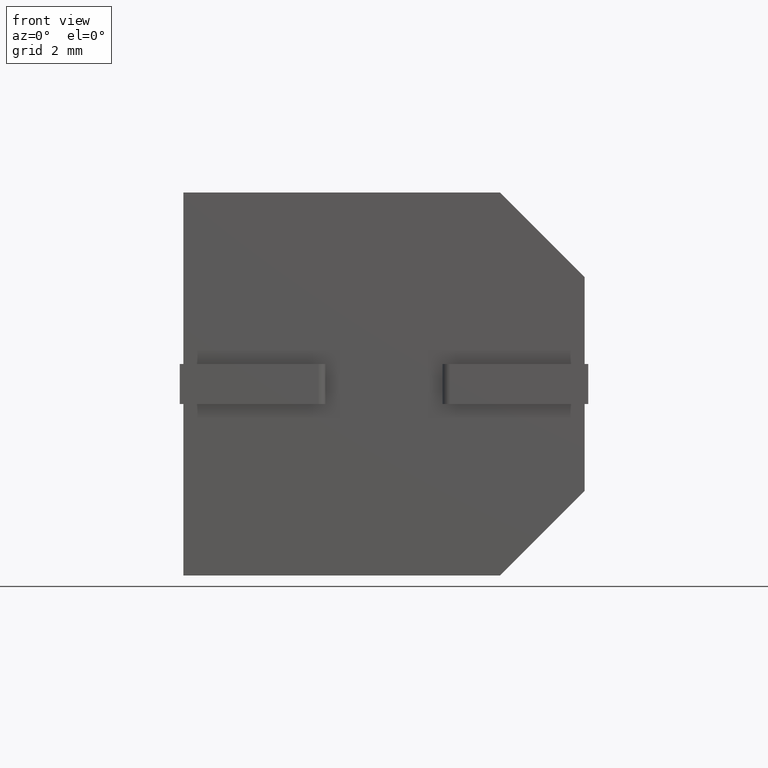
[diagram: clean part render]
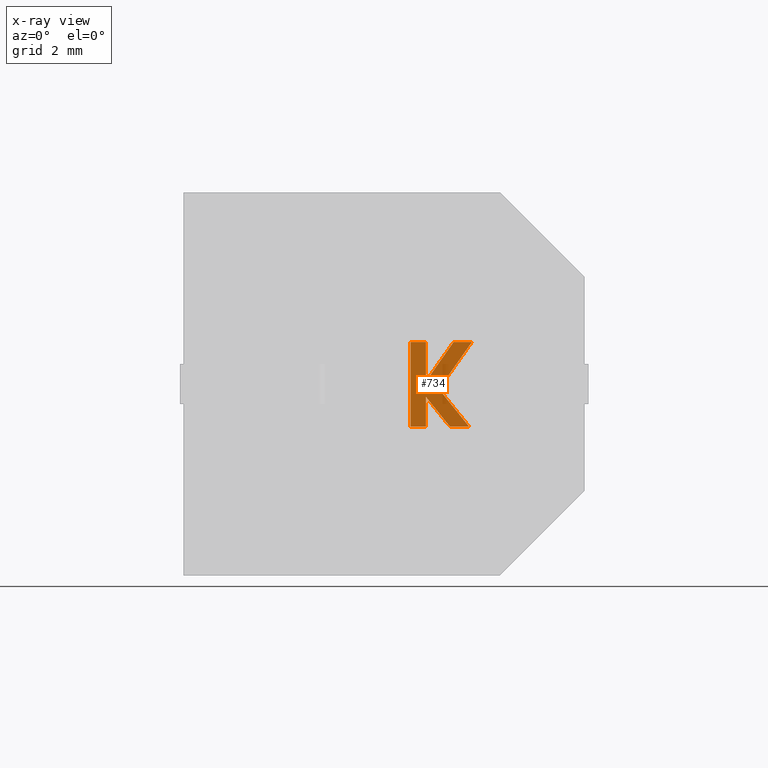
[diagram: x-ray — body ghosted, one internal face saturated and labeled with its STEP entity id]
A machine part, front view, then the same camera in x-ray: the body is ghosted and one INTERNAL B-rep face — a face not visible from any outside direction — is saturated and labeled: STEP entity #734.
In plain terms, the highlighted planar face has unit normal (0, -1, 0).
Its self-contained STEP definition (entity closure, byte-faithful):
#10 = DIRECTION ( 'NONE',  ( 0.0000000000000000000, 0.0000000000000000000, -1.000000000000000000 ) ) ;
#70 = ORIENTED_EDGE ( 'NONE', *, *, #2089, .F. ) ;
#72 = CARTESIAN_POINT ( 'NONE',  ( 7.304194581156807000, 12.70000000000000300, -6.416561327764018300 ) ) ;
#85 = CARTESIAN_POINT ( 'NONE',  ( 7.408605219237609100, 12.70000000000000300, -4.100390444616112800 ) ) ;
#172 = DIRECTION ( 'NONE',  ( 1.000000000000000000, 0.0000000000000000000, 0.0000000000000000000 ) ) ;
#185 = VECTOR ( 'NONE', #1237, 1000.000000000000000 ) ;
#245 = EDGE_CURVE ( 'NONE', #1599, #1846, #2288, .T. ) ;
#278 = DIRECTION ( 'NONE',  ( 0.0000000000000000000, 0.0000000000000000000, -1.000000000000000000 ) ) ;
#290 = VECTOR ( 'NONE', #2454, 1000.000000000000000 ) ;
#320 = DIRECTION ( 'NONE',  ( -1.000000000000000000, 0.0000000000000000000, 0.0000000000000000000 ) ) ;
#374 = LINE ( 'NONE', #85, #3392 ) ;
#377 = CARTESIAN_POINT ( 'NONE',  ( 7.003540873153890600, 12.70000000000000300, -5.392103905254209000 ) ) ;
#413 = EDGE_CURVE ( 'NONE', #1689, #3074, #3224, .T. ) ;
#521 = CARTESIAN_POINT ( 'NONE',  ( 0.5995193935814449000, 12.70000000000000300, -0.02700761617180184900 ) ) ;
#611 = EDGE_CURVE ( 'NONE', #2357, #1599, #2803, .T. ) ;
#638 = EDGE_LOOP ( 'NONE', ( #1269, #679, #3412, #1849, #1391, #1195, #70, #1424, #1817, #2551, #3288 ) ) ;
#667 = CARTESIAN_POINT ( 'NONE',  ( 6.231451354563519700, 12.70000000000000300, -6.416561369670334100 ) ) ;
#679 = ORIENTED_EDGE ( 'NONE', *, *, #611, .F. ) ;
#706 = LINE ( 'NONE', #1575, #2325 ) ;
#734 = ADVANCED_FACE ( 'NONE', ( #1741 ), #3158, .T. ) ;
#805 = CARTESIAN_POINT ( 'NONE',  ( 6.647216019062122800, 12.70000000000000300, -6.416561369670334100 ) ) ;
#841 = CARTESIAN_POINT ( 'NONE',  ( 6.647216019062122800, 12.70000000000000300, -5.602304957208130700 ) ) ;
#846 = EDGE_CURVE ( 'NONE', #3203, #1571, #706, .T. ) ;
#857 = AXIS2_PLACEMENT_3D ( 'NONE', #521, #1075, #10 ) ;
#861 = CARTESIAN_POINT ( 'NONE',  ( 7.304194581156807000, 12.70000000000000300, -6.416561327764018300 ) ) ;
#915 = CARTESIAN_POINT ( 'NONE',  ( 7.003540873153890600, 12.70000000000000300, -5.392103905254209000 ) ) ;
#916 = EDGE_CURVE ( 'NONE', #3199, #1619, #2560, .T. ) ;
#939 = VERTEX_POINT ( 'NONE', #2646 ) ;
#972 = CARTESIAN_POINT ( 'NONE',  ( 6.231451354563519700, 12.70000000000000300, -6.416561369670334100 ) ) ;
#991 = CARTESIAN_POINT ( 'NONE',  ( 6.231451354563519700, 12.70000000000000300, -4.100390444616110100 ) ) ;
#1023 = EDGE_CURVE ( 'NONE', #1619, #2357, #1043, .T. ) ;
#1043 = LINE ( 'NONE', #1404, #290 ) ;
#1075 = DIRECTION ( 'NONE',  ( 0.0000000000000000000, -1.000000000000000000, 0.0000000000000000000 ) ) ;
#1193 = CARTESIAN_POINT ( 'NONE',  ( 6.647216019062122800, 12.70000000000000300, -5.602304957208130700 ) ) ;
#1195 = ORIENTED_EDGE ( 'NONE', *, *, #846, .F. ) ;
#1209 = DIRECTION ( 'NONE',  ( -1.000000000000000000, 0.0000000000000000000, 0.0000000000000000000 ) ) ;
#1237 = DIRECTION ( 'NONE',  ( 1.000000000000000000, 0.0000000000000000000, 0.0000000000000000000 ) ) ;
#1269 = ORIENTED_EDGE ( 'NONE', *, *, #245, .F. ) ;
#1318 = CARTESIAN_POINT ( 'NONE',  ( 6.647216019062124600, 12.70000000000000300, -5.186544636963079200 ) ) ;
#1344 = VECTOR ( 'NONE', #172, 1000.000000000000000 ) ;
#1377 = EDGE_CURVE ( 'NONE', #1571, #3199, #2501, .T. ) ;
#1391 = ORIENTED_EDGE ( 'NONE', *, *, #1377, .F. ) ;
#1404 = CARTESIAN_POINT ( 'NONE',  ( 6.647216019062122800, 12.70000000000000300, -6.416561369670334100 ) ) ;
#1424 = ORIENTED_EDGE ( 'NONE', *, *, #2195, .F. ) ;
#1439 = DIRECTION ( 'NONE',  ( 0.5740093059051178900, 0.0000000000000000000, 0.8188487752536024500 ) ) ;
#1571 = VERTEX_POINT ( 'NONE', #1768 ) ;
#1575 = CARTESIAN_POINT ( 'NONE',  ( 7.828954739144714700, 12.70000000000000300, -6.416561327764018300 ) ) ;
#1585 = EDGE_CURVE ( 'NONE', #1846, #1689, #2690, .T. ) ;
#1599 = VERTEX_POINT ( 'NONE', #972 ) ;
#1619 = VERTEX_POINT ( 'NONE', #1193 ) ;
#1689 = VERTEX_POINT ( 'NONE', #2531 ) ;
#1741 = FACE_OUTER_BOUND ( 'NONE', #638, .T. ) ;
#1768 = CARTESIAN_POINT ( 'NONE',  ( 7.828954739144714700, 12.70000000000000300, -6.416561327764018300 ) ) ;
#1817 = ORIENTED_EDGE ( 'NONE', *, *, #2750, .F. ) ;
#1818 = CARTESIAN_POINT ( 'NONE',  ( 7.408605219237609100, 12.70000000000000300, -4.100390444616112800 ) ) ;
#1846 = VERTEX_POINT ( 'NONE', #2298 ) ;
#1849 = ORIENTED_EDGE ( 'NONE', *, *, #916, .F. ) ;
#1996 = VECTOR ( 'NONE', #1209, 1000.000000000000000 ) ;
#2051 = LINE ( 'NONE', #3068, #1344 ) ;
#2081 = DIRECTION ( 'NONE',  ( 0.6274016762861016600, 0.0000000000000000000, -0.7786957920737659400 ) ) ;
#2089 = EDGE_CURVE ( 'NONE', #939, #3203, #2719, .T. ) ;
#2130 = VECTOR ( 'NONE', #2462, 1000.000000000000100 ) ;
#2156 = CARTESIAN_POINT ( 'NONE',  ( 6.647216019062124600, 12.70000000000000300, -5.186544636963079200 ) ) ;
#2195 = EDGE_CURVE ( 'NONE', #2461, #939, #2051, .T. ) ;
#2288 = LINE ( 'NONE', #991, #2723 ) ;
#2298 = CARTESIAN_POINT ( 'NONE',  ( 6.231451354563519700, 12.70000000000000300, -4.100390444616110100 ) ) ;
#2325 = VECTOR ( 'NONE', #2081, 1000.000000000000000 ) ;
#2357 = VERTEX_POINT ( 'NONE', #805 ) ;
#2454 = DIRECTION ( 'NONE',  ( 0.0000000000000000000, 0.0000000000000000000, -1.000000000000000000 ) ) ;
#2461 = VERTEX_POINT ( 'NONE', #1818 ) ;
#2462 = DIRECTION ( 'NONE',  ( -0.5740940732108399400, 0.0000000000000000000, -0.8187893472097611500 ) ) ;
#2501 = LINE ( 'NONE', #861, #2732 ) ;
#2521 = CARTESIAN_POINT ( 'NONE',  ( 6.647216019062124600, 12.70000000000000300, -4.100390444616110100 ) ) ;
#2531 = CARTESIAN_POINT ( 'NONE',  ( 6.647216019062124600, 12.70000000000000300, -4.100390444616110100 ) ) ;
#2551 = ORIENTED_EDGE ( 'NONE', *, *, #413, .F. ) ;
#2556 = DIRECTION ( 'NONE',  ( 0.0000000000000000000, 0.0000000000000000000, 1.000000000000000000 ) ) ;
#2560 = LINE ( 'NONE', #841, #2886 ) ;
#2646 = CARTESIAN_POINT ( 'NONE',  ( 7.909225643682564300, 12.70000000000000300, -4.100390444616112800 ) ) ;
#2690 = LINE ( 'NONE', #2521, #185 ) ;
#2719 = LINE ( 'NONE', #915, #2130 ) ;
#2723 = VECTOR ( 'NONE', #2556, 1000.000000000000000 ) ;
#2732 = VECTOR ( 'NONE', #320, 1000.000000000000000 ) ;
#2750 = EDGE_CURVE ( 'NONE', #3074, #2461, #374, .T. ) ;
#2803 = LINE ( 'NONE', #667, #1996 ) ;
#2886 = VECTOR ( 'NONE', #2919, 1000.000000000000000 ) ;
#2919 = DIRECTION ( 'NONE',  ( -0.6279378741829141400, 0.0000000000000000000, 0.7782634683490179400 ) ) ;
#3068 = CARTESIAN_POINT ( 'NONE',  ( 7.909225643682564300, 12.70000000000000300, -4.100390444616112800 ) ) ;
#3074 = VERTEX_POINT ( 'NONE', #1318 ) ;
#3158 = PLANE ( 'NONE',  #857 ) ;
#3199 = VERTEX_POINT ( 'NONE', #72 ) ;
#3203 = VERTEX_POINT ( 'NONE', #377 ) ;
#3224 = LINE ( 'NONE', #2156, #3307 ) ;
#3288 = ORIENTED_EDGE ( 'NONE', *, *, #1585, .F. ) ;
#3307 = VECTOR ( 'NONE', #278, 1000.000000000000000 ) ;
#3392 = VECTOR ( 'NONE', #1439, 1000.000000000000200 ) ;
#3412 = ORIENTED_EDGE ( 'NONE', *, *, #1023, .F. ) ;